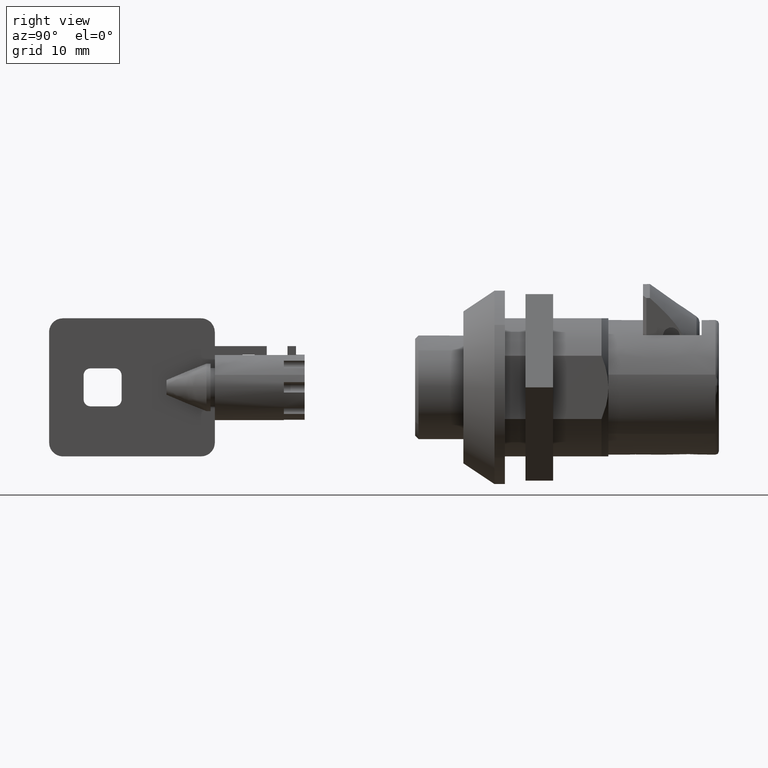
[diagram: clean part render]
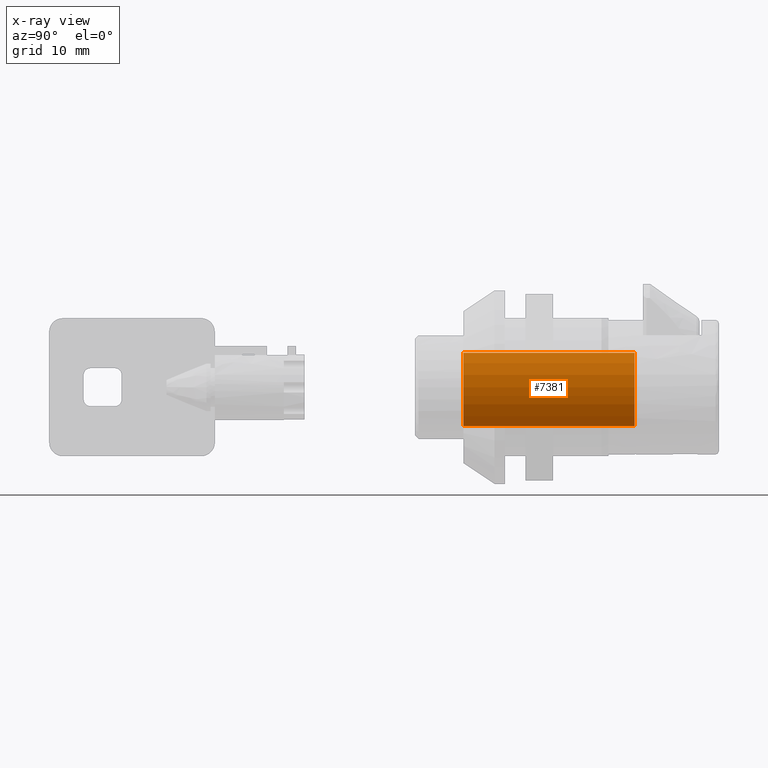
[diagram: x-ray — body ghosted, one internal face saturated and labeled with its STEP entity id]
A machine part, right view, then the same camera in x-ray: the body is ghosted and one INTERNAL B-rep face — a face not visible from any outside direction — is saturated and labeled: STEP entity #7381.
In plain terms, the highlighted face is a freeform B-spline surface patch.
Its self-contained STEP definition (entity closure, byte-faithful):
#7070=CARTESIAN_POINT('',(18.800000000004431,-5.921464226226878,4.999877716349191));
#7071=VERTEX_POINT('',#7070);
#7083=CARTESIAN_POINT('',(-5.999999999999891,-5.921464223930855,4.999877719068422));
#7084=VERTEX_POINT('',#7083);
#7085=CARTESIAN_POINT('',(18.800000000004431,-5.921464226226878,4.999877716349191));
#7086=CARTESIAN_POINT('',(-5.999999999999891,-5.921464223930855,4.999877719068422));
#7087=QUASI_UNIFORM_CURVE('',1,(#7085,#7086),.UNSPECIFIED.,.F.,.U.);
#7088=EDGE_CURVE('',#7071,#7084,#7087,.T.);
#7131=CARTESIAN_POINT('',(-5.999999999999890,-5.330354991767383,-5.625815469598768));
#7132=VERTEX_POINT('',#7131);
#7142=CARTESIAN_POINT('',(18.799999999993211,-5.330354994593736,-5.625815466920850));
#7143=VERTEX_POINT('',#7142);
#7144=CARTESIAN_POINT('',(18.799999999993211,-5.330354994593736,-5.625815466920850));
#7145=CARTESIAN_POINT('',(-5.999999999999890,-5.330354991767383,-5.625815469598768));
#7146=QUASI_UNIFORM_CURVE('',1,(#7144,#7145),.UNSPECIFIED.,.F.,.U.);
#7147=EDGE_CURVE('',#7143,#7132,#7146,.T.);
#7325=CARTESIAN_POINT('',(19.420000000000002,-5.330355464064869,-5.625816440901270));
#7326=CARTESIAN_POINT('',(19.419999999999995,-10.643114572280219,-0.592076922517711));
#7327=CARTESIAN_POINT('',(19.420000000000002,-5.921463263867023,4.999877279961193));
#7328=CARTESIAN_POINT('',(-6.635499999999889,-5.330355464064869,-5.625816440901270));
#7329=CARTESIAN_POINT('',(-6.635499999999889,-10.643114572280219,-0.592076922517711));
#7330=CARTESIAN_POINT('',(-6.635499999999887,-5.921463263867023,4.999877279961193));
#7338=(BOUNDED_SURFACE()B_SPLINE_SURFACE(2,1,((#7325,#7328),(#7326,#7329),(#7327,#7330)),.UNSPECIFIED.,.F.,.F.,.U.)B_SPLINE_SURFACE_WITH_KNOTS((3,3),(2,2),(0.0,12.323612579993121),(0.0,26.055499999999888),.UNSPECIFIED.)GEOMETRIC_REPRESENTATION_ITEM()RATIONAL_B_SPLINE_SURFACE(((1.0,1.0),(0.718822509939086,0.718822509939086),(0.977505800795127,0.977505800795127)))REPRESENTATION_ITEM('')SURFACE());
#7339=CARTESIAN_POINT('',(18.800000000000001,-7.749999999998901,0.000004125677371));
#7340=VERTEX_POINT('',#7339);
#7341=CARTESIAN_POINT('',(18.800000000000001,-7.749999999998901,0.000004125677371));
#7342=CARTESIAN_POINT('',(18.800000000000860,-7.750959976069964,0.962489020826524));
#7343=CARTESIAN_POINT('',(18.800000000002491,-7.407794405651019,2.773139679202934));
#7344=CARTESIAN_POINT('',(18.800000000003848,-6.469730024000731,4.351389163820660));
#7345=CARTESIAN_POINT('',(18.800000000004431,-5.921464226226878,4.999877716349191));
#7346=B_SPLINE_CURVE_WITH_KNOTS('',3,(#7341,#7342,#7343,#7344,#7345),.UNSPECIFIED.,.F.,.U.,(4,1,4),(0.000000077291306,2.887063042971280,5.434510358983978),.UNSPECIFIED.);
#7347=EDGE_CURVE('',#7340,#7071,#7346,.T.);
#7348=ORIENTED_EDGE('',*,*,#7347,.F.);
#7349=CARTESIAN_POINT('',(18.799999999993211,-5.330354994593736,-5.625815466920850));
#7350=CARTESIAN_POINT('',(18.799999999993751,-5.782715250994576,-5.197399898910011));
#7351=CARTESIAN_POINT('',(18.799999999994700,-6.477791798586031,-4.357864939719575));
#7352=CARTESIAN_POINT('',(18.799999999997041,-7.455309674835008,-2.491377028714907));
#7353=CARTESIAN_POINT('',(18.799999999998800,-7.751213167944867,-1.016754957939981));
#7354=CARTESIAN_POINT('',(18.800000000000001,-7.749999999998901,0.000004125677371));
#7355=B_SPLINE_CURVE_WITH_KNOTS('',3,(#7349,#7350,#7351,#7352,#7353,#7354),.UNSPECIFIED.,.F.,.U.,(4,1,1,4),(0.000000092898473,1.869078407019199,3.246234825351311,6.295829179737390),.UNSPECIFIED.);
#7356=EDGE_CURVE('',#7143,#7340,#7355,.T.);
#7357=ORIENTED_EDGE('',*,*,#7356,.F.);
#7358=ORIENTED_EDGE('',*,*,#7147,.T.);
#7359=CARTESIAN_POINT('',(-5.999999999999890,-7.749999999998901,0.000004125677371));
#7360=VERTEX_POINT('',#7359);
#7361=CARTESIAN_POINT('',(-5.999999999999890,-5.330354991767383,-5.625815469598768));
#7362=CARTESIAN_POINT('',(-5.999999999999888,-5.782634401585321,-5.197362320483133));
#7363=CARTESIAN_POINT('',(-5.999999999999904,-6.709970915552986,-4.078212242599698));
#7364=CARTESIAN_POINT('',(-5.999999999999882,-7.561898671023466,-2.131452558062875));
#7365=CARTESIAN_POINT('',(-5.999999999999896,-7.750095756100610,-0.655796620359662));
#7366=CARTESIAN_POINT('',(-5.999999999999890,-7.749999999998901,0.000004125677371));
#7367=B_SPLINE_CURVE_WITH_KNOTS('',3,(#7361,#7362,#7363,#7364,#7365,#7366),.UNSPECIFIED.,.F.,.U.,(4,1,1,4),(0.000000092897820,1.869078408174650,4.328369695937188,6.295829183631004),.UNSPECIFIED.);
#7368=EDGE_CURVE('',#7132,#7360,#7367,.T.);
#7369=ORIENTED_EDGE('',*,*,#7368,.T.);
#7370=CARTESIAN_POINT('',(-5.999999999999890,-7.749999999998901,0.000004125677371));
#7371=CARTESIAN_POINT('',(-5.999999999999890,-7.750544128733288,0.849205933512936));
#7372=CARTESIAN_POINT('',(-5.999999999999888,-7.449066952441648,2.660254205482192));
#7373=CARTESIAN_POINT('',(-5.999999999999898,-6.543130923760108,4.265092558082885));
#7374=CARTESIAN_POINT('',(-5.999999999999891,-5.921464223930855,4.999877719068422));
#7375=B_SPLINE_CURVE_WITH_KNOTS('',3,(#7370,#7371,#7372,#7373,#7374),.UNSPECIFIED.,.F.,.U.,(4,1,4),(0.000000077291142,2.547447394995476,5.434510362543116),.UNSPECIFIED.);
#7376=EDGE_CURVE('',#7360,#7084,#7375,.T.);
#7377=ORIENTED_EDGE('',*,*,#7376,.T.);
#7378=ORIENTED_EDGE('',*,*,#7088,.F.);
#7379=EDGE_LOOP('',(#7348,#7357,#7358,#7369,#7377,#7378));
#7380=FACE_OUTER_BOUND('',#7379,.T.);
#7381=ADVANCED_FACE('',(#7380),#7338,.F.);